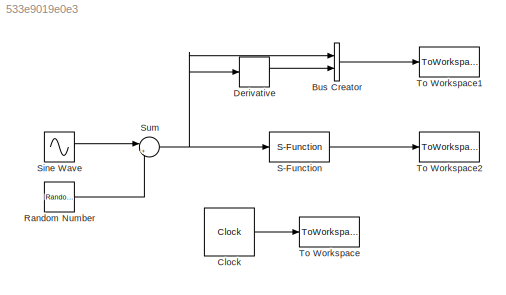
MODEL slx_533e9019e0e3
KIND model
CONFIG AbsTol = auto
CONFIG EnableMultiTasking = off
CONFIG FixedStep = auto
CONFIG MaxStep = auto
CONFIG MinStep = auto
CONFIG RelTol = 1e-3
CONFIG SampleTimeConstraint = Unconstrained
CONFIG Solver = ode45
CONFIG SolverName = ode45
CONFIG StartTime = 0.0
CONFIG StopTime = 20
BLOCK [BusCreator] Bus Creator
  DisplayOption = bar
  InheritFromInputs = on
  Inputs = 2
  Ports = [2, 1]
BLOCK [Clock] Clock
  DisplayTime = on
BLOCK [Derivative] Derivative
BLOCK [RandomNumber] Random Number
  SampleTime = 0.001
  Variance = 0.1
BLOCK [S-Function] S-Function
  EnableBusSupport = off
  FunctionName = chapl_5diff
  Ports = [1, 1]
  SFcnIsStateOwnerBlock = off
  SFunctionDeploymentMode = off
BLOCK [Sin] Sine Wave
  Ports = [0, 1]
  SampleTime = 0
BLOCK [Sum] Sum
  IconShape = round
  InputSameDT = off
  Inputs = |++
  OutDataTypeStr = Inherit: Inherit via internal rule
  Ports = [2, 1]
  SaturateOnIntegerOverflow = off
BLOCK [ToWorkspace] To Workspace
  FixptAsFi = on
  MaxDataPoints = inf
  Ports = [1]
  SampleTime = -1
  VariableName = t
BLOCK [ToWorkspace] To Workspace1
  FixptAsFi = on
  MaxDataPoints = inf
  Ports = [1]
  SampleTime = -1
  VariableName = r
BLOCK [ToWorkspace] To Workspace2
  FixptAsFi = on
  MaxDataPoints = inf
  Ports = [1]
  SampleTime = -1
  VariableName = y
LINE Bus Creator:1 -> To Workspace1:1
LINE Clock:1 -> To Workspace:1
LINE Derivative:1 -> Bus Creator:2
LINE Random Number:1 -> Sum:2
LINE S-Function:1 -> To Workspace2:1
LINE Sine Wave:1 -> Sum:1
NET Sum:1 -> Bus Creator:1, Derivative:1, S-Function:1
note: NET lines group one-source signal fan-out (src -> all destinations, sorted); 1:1 wires keep LINE
